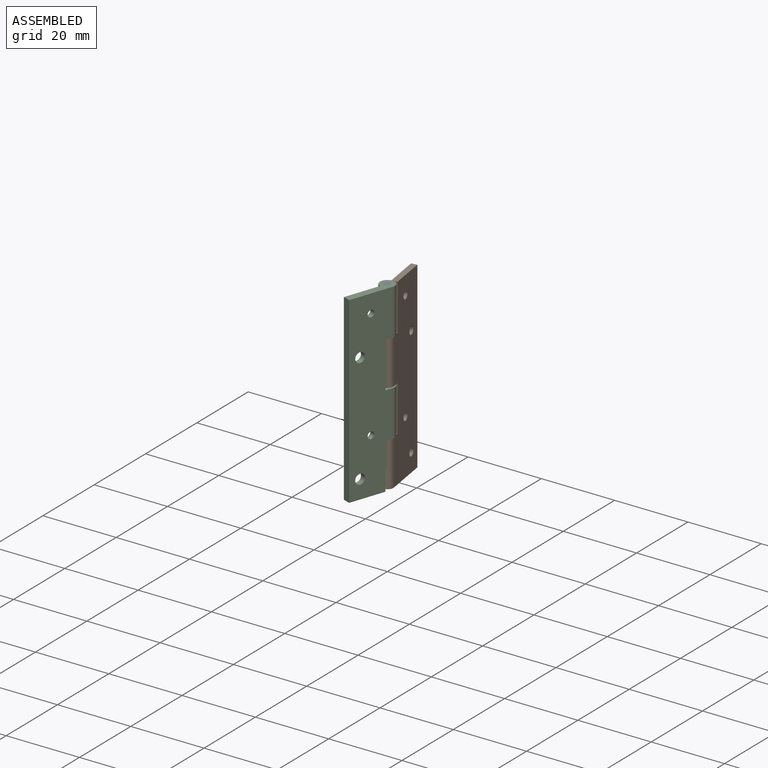
[diagram: assembled view]
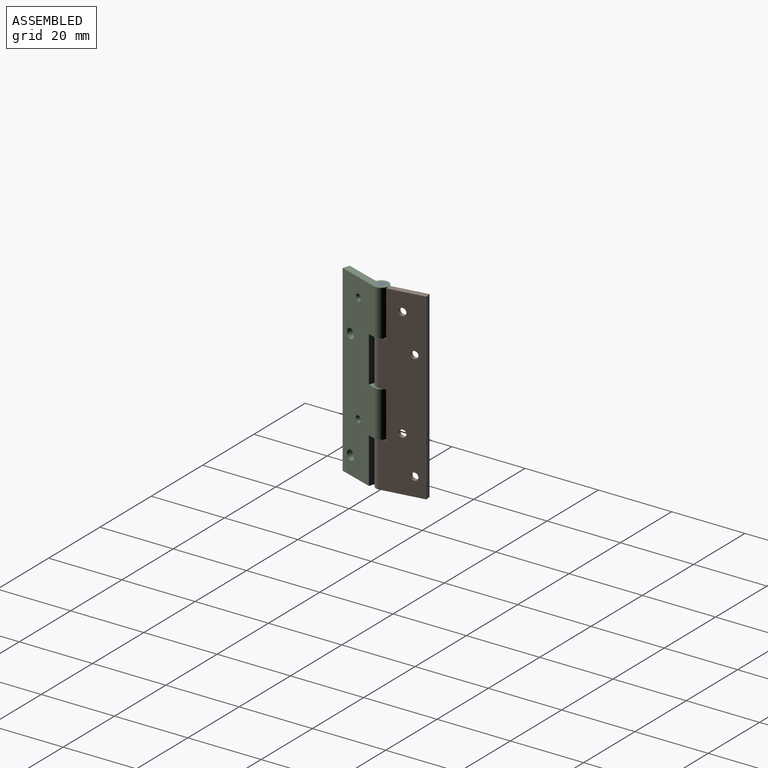
[diagram: assembled view, second angle]
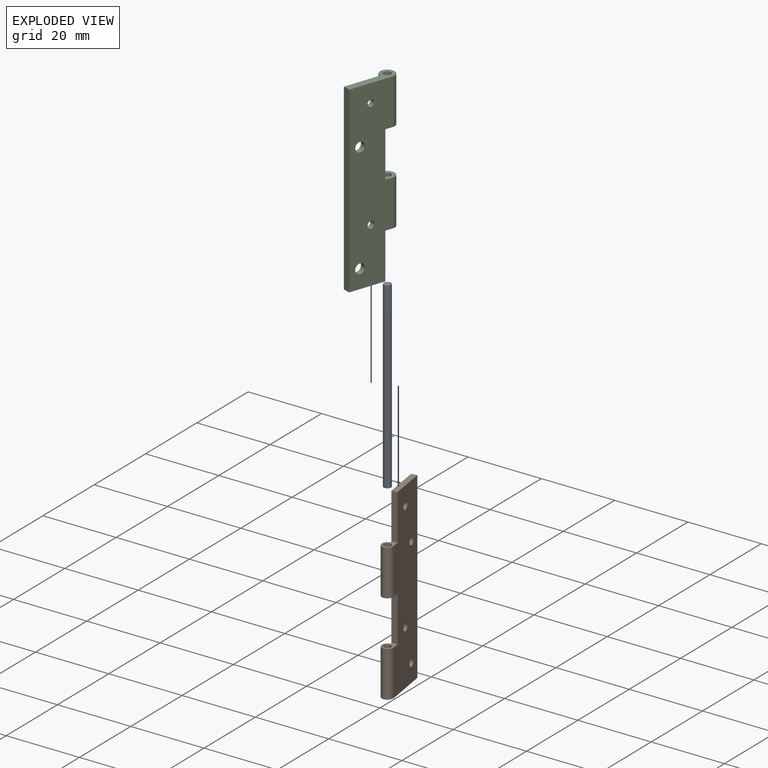
[diagram: exploded view]
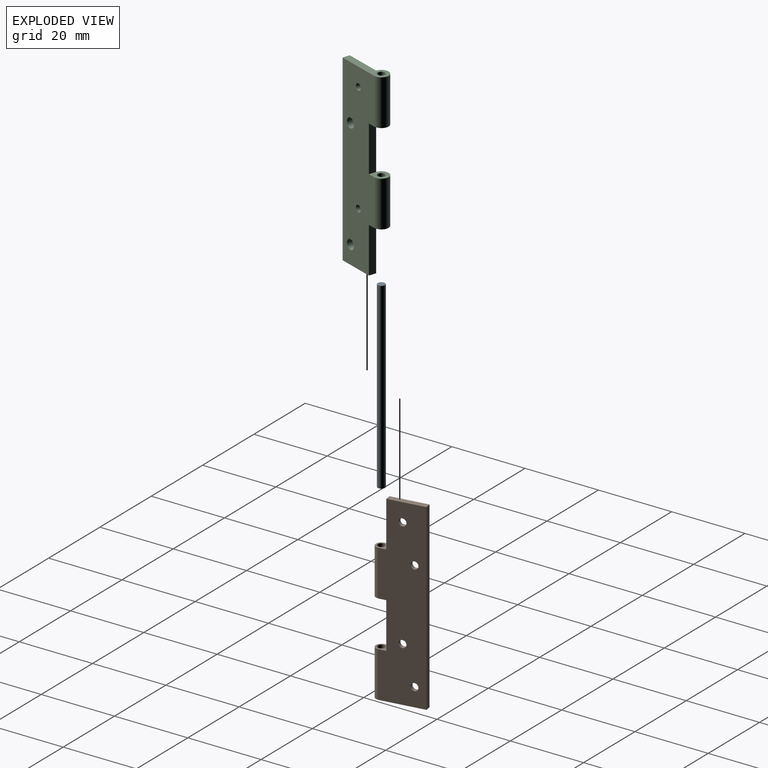
[diagram: exploded view, second angle]
ASSEMBLY  parts=3 mates=2
PART A: 3 faces, bbox 2x2x50 mm
  f0: cylinder r=1mm len=50mm, axis (0,0,-1), area 314.2mm2, adj f1,f2
  f1: plane 2x2mm, normal (0,0,1), area 3.1mm2, adj f0
  f2: plane 2x2mm, normal (0,0,-1), area 3.1mm2, adj f0
PART B: 24 faces, bbox 13.5x3.1x50 mm
  f0: cylinder r=1.5mm len=12.5mm, axis (0,0,-1), area 88.4mm2, adj f1,f3,f10,f13
  f1: plane 12.5x0.06mm, normal (-1,0,0), area 0.8mm2, adj f0,f2,f10,f13
  f2: plane 50x12mm, normal (0,-1,0), area 537.4mm2, adj f1,f4,f6,f7,f9,f10,f11,f12
  f3: plane 50x10.5mm, normal (0,1,0), area 484.2mm2, adj f0,f4,f5,f7,f9,f10,f11,f12
  f4: plane 10x1.56mm, normal (0,0,1), area 15.6mm2, adj f2,f3,f7,f14
  f5: cylinder r=1.5mm len=12.5mm, axis (0,0,-1), area 88.4mm2, adj f3,f6,f9,f11
  f6: plane 12.5x0.06mm, normal (-1,0,0), area 0.8mm2, adj f2,f5,f9,f11
  f7: plane 50x1.56mm, normal (1,0,0), area 78.2mm2, adj f2,f3,f4,f9
  f8: cylinder r=1mm len=12.5mm, axis (0,0,-1), area 78.5mm2, adj f9,f11
  f9: plane 13.5x3.06mm, normal (0,0,-1), area 20.9mm2, adj f2,f3,f5,f6,f7,f8
  f10: plane 3.5x3.06mm, normal (0,0,-1), area 5.3mm2, adj f0,f1,f2,f3,f12,f15
  f11: plane 3.5x3.06mm, normal (0,0,1), area 5.3mm2, adj f2,f3,f5,f6,f8,f12
  f12: plane 12.5x1.56mm, normal (-1,0,0), area 19.6mm2, adj f2,f3,f10,f11
  f13: plane 3.5x3.06mm, normal (0,0,1), area 5.3mm2, adj f0,f1,f2,f3,f14,f15
  f14: plane 12.5x1.56mm, normal (-1,0,0), area 19.6mm2, adj f2,f3,f4,f13
  f15: cylinder r=1mm len=12.5mm, axis (0,0,-1), area 78.5mm2, adj f10,f13
  f16: cylinder r=1mm len=2mm, axis (0,-1,0), area 6.7mm2, adj f2,f21
  f17: cylinder r=1mm len=2mm, axis (0,-1,0), area 6.7mm2, adj f2,f20
  f18: cylinder r=1mm len=2mm, axis (0,-1,0), area 6.7mm2, adj f2,f22
  f19: cylinder r=1mm len=2mm, axis (0,-1,0), area 6.7mm2, adj f2,f23
  f20: cone r=1mm half-angle=45deg, axis (0,1,0), area 5.6mm2, adj f3,f17
  f21: cone r=1mm half-angle=45deg, axis (0,1,0), area 5.6mm2, adj f3,f16
  f22: cone r=1mm half-angle=45deg, axis (0,1,0), area 5.6mm2, adj f3,f18
  f23: cone r=1mm half-angle=45deg, axis (0,1,0), area 5.6mm2, adj f3,f19
PART C: 22 faces, bbox 14x4x50 mm
  f0: plane 50x12mm, normal (0,-1,0), area 533.5mm2, adj f1,f2,f3,f6,f7,f8,f9,f10
  f1: cylinder r=2mm len=12.5mm, axis (0,0,-1), area 117.8mm2, adj f0,f4,f9,f11
  f2: plane 50x2mm, normal (-1,0,0), area 100mm2, adj f0,f4,f6,f7
  f3: cylinder r=2mm len=12.5mm, axis (0,0,-1), area 117.8mm2, adj f0,f4,f6,f8
  f4: plane 50x10mm, normal (0,1,0), area 466.3mm2, adj f1,f2,f3,f6,f7,f10,f12,f18
  f5: cylinder r=1mm len=12.5mm, axis (0,0,-1), area 78.5mm2, adj f6,f8
  f6: plane 14x4mm, normal (0,0,1), area 30.3mm2, adj f0,f2,f3,f4,f5
  f7: plane 10x2mm, normal (0,0,-1), area 20mm2, adj f0,f2,f4,f12
  f8: plane 4x4mm, normal (0,0,-1), area 10.3mm2, adj f0,f3,f5,f10
  f9: plane 4x4mm, normal (0,0,1), area 10.3mm2, adj f0,f1,f10,f13
  f10: plane 12.5x2mm, normal (1,0,0), area 25mm2, adj f0,f4,f8,f9
  f11: plane 4x4mm, normal (0,0,-1), area 10.3mm2, adj f0,f1,f12,f13
  f12: plane 12.5x2mm, normal (1,0,0), area 25mm2, adj f0,f4,f7,f11
  f13: cylinder r=1mm len=12.5mm, axis (0,0,-1), area 78.5mm2, adj f9,f11
  f14: cylinder r=0.92mm len=1.83mm, axis (0,-1,0), area 8.6mm2, adj f0,f21
  f15: cylinder r=1.33mm len=2.67mm, axis (0,-1,0), area 12.6mm2, adj f0,f20
  f16: cylinder r=0.92mm len=1.83mm, axis (0,-1,0), area 8.6mm2, adj f0,f19
  f17: cylinder r=1.33mm len=2.67mm, axis (0,-1,0), area 12.6mm2, adj f0,f18
  f18: cone r=1.33mm half-angle=45deg, axis (0,1,0), area 7mm2, adj f4,f17
  f19: cone r=0.92mm half-angle=45deg, axis (0,1,0), area 5.2mm2, adj f4,f16
  f20: cone r=1.33mm half-angle=45deg, axis (0,1,0), area 7mm2, adj f4,f15
  f21: cone r=0.92mm half-angle=45deg, axis (0,1,0), area 5.2mm2, adj f4,f14
PLACE A t=(3.93,2.62,-0.78)mm fixed
PLACE B rot(axis=(0,0,1),98.9deg) t=(-22.38,23.79,-0.78)mm
PLACE C rot(axis=(0,0,1),71deg) t=(-9.3,31.71,-0.78)mm
MATE revolute B.f0 <-> A.f0  axis (0,0,-1) through (-20.91,4.19,-0.78)mm
MATE revolute C.f1 <-> A.f0  axis (0,0,1) through (-20.91,4.19,49.22)mm
